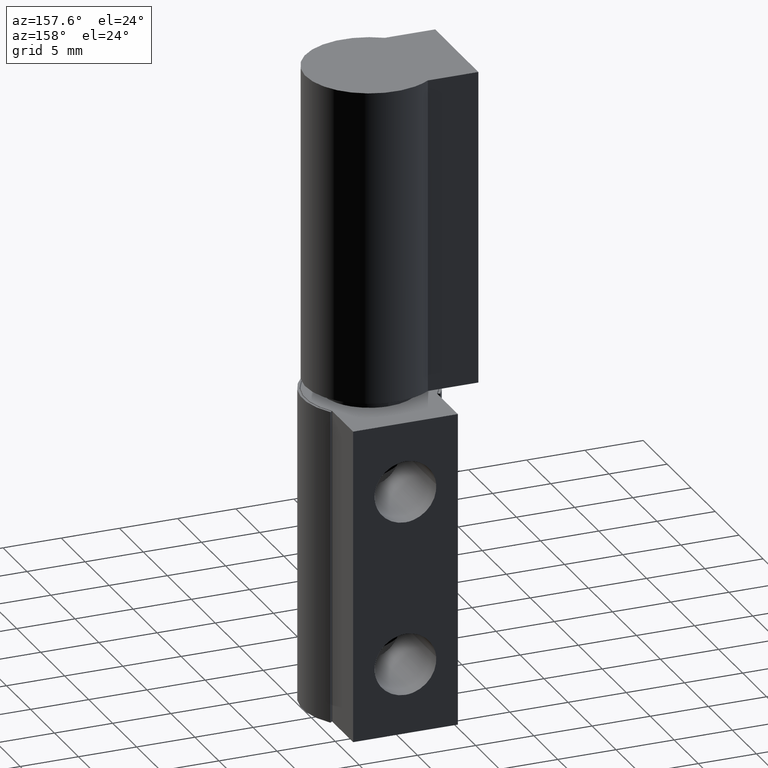
[diagram: clean part render]
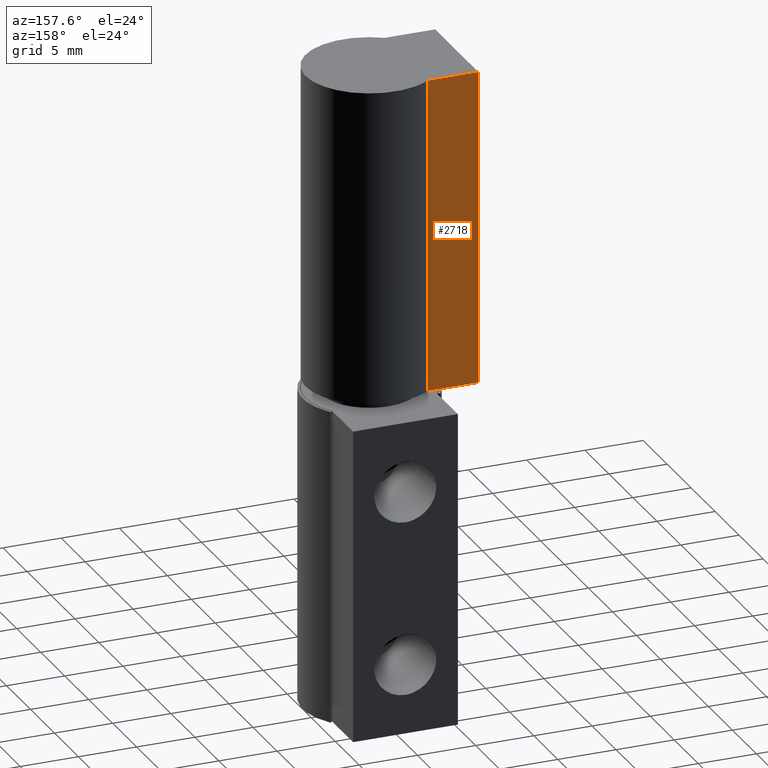
[diagram: same view with one face highlighted and labeled with its STEP entity id]
A machine part, auxiliary view. The second image highlights one B-rep face of the part: STEP entity #2718.
In plain terms, the highlighted face is a freeform B-spline surface patch.
Its self-contained STEP definition (entity closure, byte-faithful):
#2529=CARTESIAN_POINT('',(-7.500000231230910,4.500000088738490,55.000002612355502));
#2530=VERTEX_POINT('',#2529);
#2531=CARTESIAN_POINT('',(-3.162327777243335,4.500000338738460,55.000002612355502));
#2532=VERTEX_POINT('',#2531);
#2533=CARTESIAN_POINT('',(-7.500000231230910,4.500000088738490,55.000002612355502));
#2534=CARTESIAN_POINT('',(-3.162327777243335,4.500000338738460,55.000002612355502));
#2535=QUASI_UNIFORM_CURVE('',1,(#2533,#2534),.UNSPECIFIED.,.F.,.U.);
#2536=EDGE_CURVE('',#2530,#2532,#2535,.T.);
#2577=CARTESIAN_POINT('',(-7.500000231230910,4.500000088738490,28.000001329926199));
#2578=VERTEX_POINT('',#2577);
#2579=CARTESIAN_POINT('',(-3.162327777243335,4.500000338738460,28.000001329926199));
#2580=VERTEX_POINT('',#2579);
#2581=CARTESIAN_POINT('',(-7.500000231230910,4.500000088738490,28.000001329926199));
#2582=CARTESIAN_POINT('',(-3.162327777243335,4.500000338738460,28.000001329926199));
#2583=QUASI_UNIFORM_CURVE('',1,(#2581,#2582),.UNSPECIFIED.,.F.,.U.);
#2584=EDGE_CURVE('',#2578,#2580,#2583,.T.);
#2632=CARTESIAN_POINT('',(-7.500000231230910,4.500000088738490,28.000001329926199));
#2633=CARTESIAN_POINT('',(-7.500000231230910,4.500000088738490,55.000002612355502));
#2634=QUASI_UNIFORM_CURVE('',1,(#2632,#2633),.UNSPECIFIED.,.F.,.U.);
#2635=EDGE_CURVE('',#2578,#2530,#2634,.T.);
#2699=CARTESIAN_POINT('',(-3.162327777243335,4.500000338738460,28.000001329926199));
#2700=CARTESIAN_POINT('',(-3.162327777243335,4.500000338738460,55.000002612355502));
#2701=QUASI_UNIFORM_CURVE('',1,(#2699,#2700),.UNSPECIFIED.,.F.,.U.);
#2702=EDGE_CURVE('',#2580,#2532,#2701,.T.);
#2707=CARTESIAN_POINT('',(-7.716666717586545,4.500000338738490,56.348653794902098));
#2708=CARTESIAN_POINT('',(-7.716666717586545,4.500000338738490,26.651352561367830));
#2709=CARTESIAN_POINT('',(-2.945660941851374,4.500000338738490,56.348653794902098));
#2710=CARTESIAN_POINT('',(-2.945660941851374,4.500000338738490,26.651352561367830));
#2711=B_SPLINE_SURFACE_WITH_KNOTS('',1,1,((#2707,#2709),(#2708,#2710)),.UNSPECIFIED.,.F.,.F.,.U.,(2,2),(2,2),(0.0,29.697301233534269),(0.0,4.771005775735171),.UNSPECIFIED.);
#2712=ORIENTED_EDGE('',*,*,#2536,.T.);
#2713=ORIENTED_EDGE('',*,*,#2702,.F.);
#2714=ORIENTED_EDGE('',*,*,#2584,.F.);
#2715=ORIENTED_EDGE('',*,*,#2635,.T.);
#2716=EDGE_LOOP('',(#2712,#2713,#2714,#2715));
#2717=FACE_OUTER_BOUND('',#2716,.T.);
#2718=ADVANCED_FACE('',(#2717),#2711,.F.);